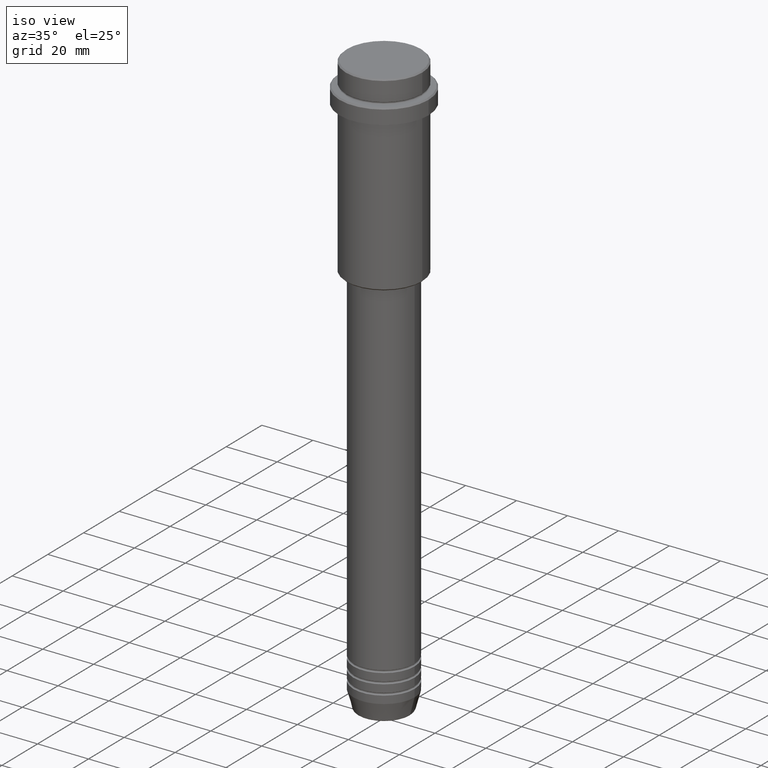
[diagram: clean part render]
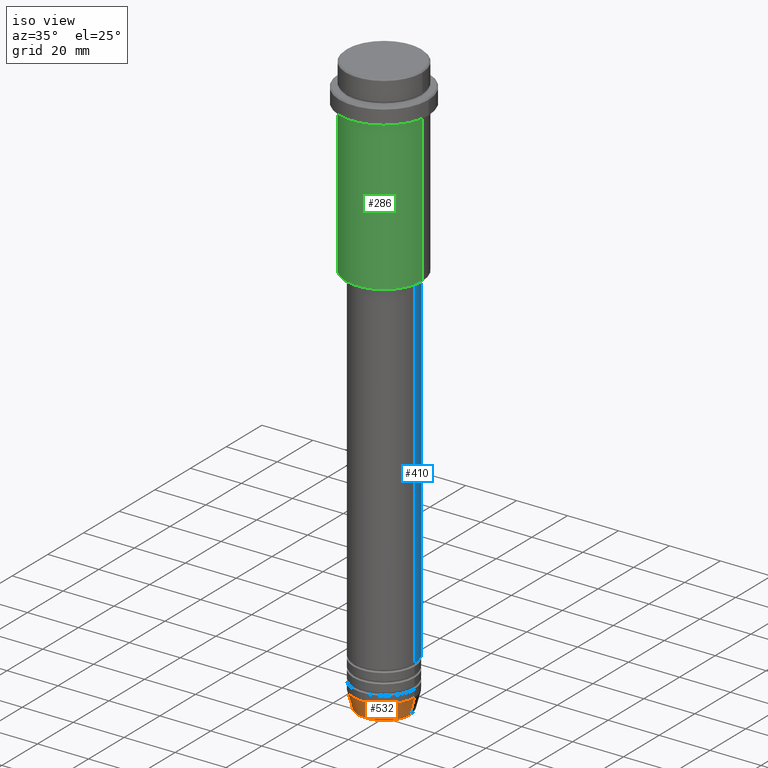
[diagram: same view with three faces highlighted in distinct colors, each labeled with its STEP entity id]
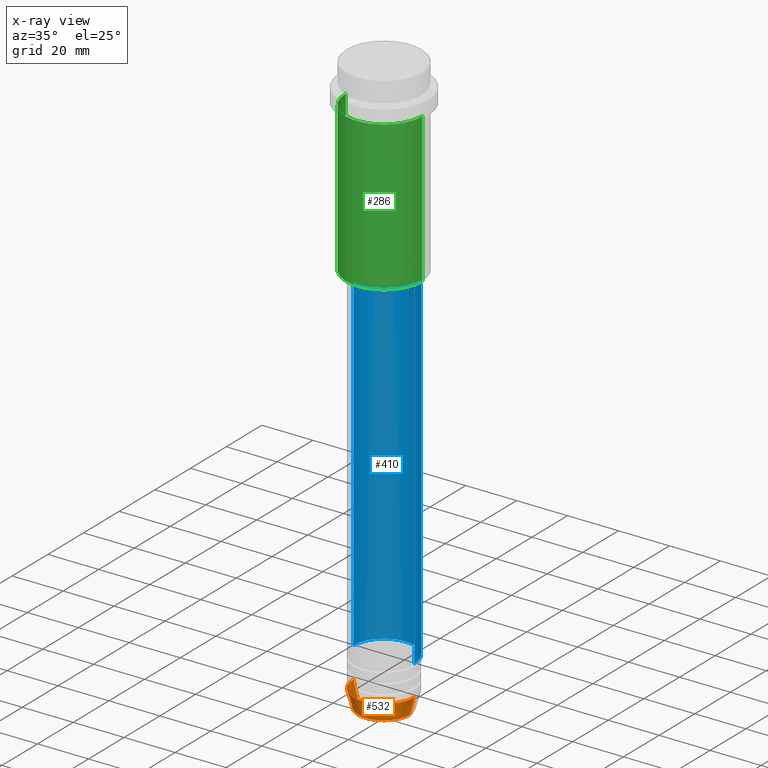
[diagram: x-ray of the same camera — body ghosted, the three highlighted faces saturated]
A machine part, iso view with three faces highlighted in distinct colors.
The next image is the same camera in x-ray (body ghosted, the three faces saturated) — at least one of them is partly hidden behind the body in this view.
Their STEP definitions:

[orange] entity #532 — the highlighted conical surface has half-angle 15 deg.
#24 = ORIENTED_EDGE ( 'NONE', *, *, #436, .T. ) ;
#42 = AXIS2_PLACEMENT_3D ( 'NONE', #480, #717, #287 ) ;
#46 = DIRECTION ( 'NONE',  ( 1.000000000000000000, 0.000000000000000000, 0.000000000000000000 ) ) ;
#47 = VERTEX_POINT ( 'NONE', #297 ) ;
#73 = VERTEX_POINT ( 'NONE', #1059 ) ;
#76 = CARTESIAN_POINT ( 'NONE',  ( -12.00000000000000000, 1.469576158976823947E-15, -222.9999999999999716 ) ) ;
#90 = CARTESIAN_POINT ( 'NONE',  ( 0.000000000000000000, 0.000000000000000000, -222.9999999999999716 ) ) ;
#214 = VERTEX_POINT ( 'NONE', #1116 ) ;
#227 = CONICAL_SURFACE ( 'NONE', #1391, 12.00000000000000000, 0.2617993877991500740 ) ;
#277 = CARTESIAN_POINT ( 'NONE',  ( 0.000000000000000000, 0.000000000000000000, -229.6294095225512422 ) ) ;
#287 = DIRECTION ( 'NONE',  ( 1.000000000000000000, 0.000000000000000000, 0.000000000000000000 ) ) ;
#288 = ORIENTED_EDGE ( 'NONE', *, *, #928, .F. ) ;
#297 = CARTESIAN_POINT ( 'NONE',  ( 12.00000000000000000, 0.000000000000000000, -222.9999999999999716 ) ) ;
#311 = ORIENTED_EDGE ( 'NONE', *, *, #455, .T. ) ;
#379 = LINE ( 'NONE', #911, #746 ) ;
#436 = EDGE_CURVE ( 'NONE', #214, #47, #379, .T. ) ;
#455 = EDGE_CURVE ( 'NONE', #73, #214, #1149, .T. ) ;
#463 = ORIENTED_EDGE ( 'NONE', *, *, #479, .F. ) ;
#479 = EDGE_CURVE ( 'NONE', #1306, #47, #1014, .T. ) ;
#480 = CARTESIAN_POINT ( 'NONE',  ( 0.000000000000000000, 0.000000000000000000, -222.9999999999999716 ) ) ;
#532 = ADVANCED_FACE ( 'NONE', ( #1068 ), #227, .T. ) ;
#536 = AXIS2_PLACEMENT_3D ( 'NONE', #277, #724, #46 ) ;
#578 = VECTOR ( 'NONE', #1044, 1000.000000000000000 ) ;
#590 = CARTESIAN_POINT ( 'NONE',  ( -12.00000000000000000, 1.469576158976823947E-15, -222.9999999999999716 ) ) ;
#717 = DIRECTION ( 'NONE',  ( -0.000000000000000000, -0.000000000000000000, 1.000000000000000000 ) ) ;
#724 = DIRECTION ( 'NONE',  ( -0.000000000000000000, -0.000000000000000000, 1.000000000000000000 ) ) ;
#732 = DIRECTION ( 'NONE',  ( -0.000000000000000000, -0.000000000000000000, 1.000000000000000000 ) ) ;
#746 = VECTOR ( 'NONE', #1358, 1000.000000000000000 ) ;
#816 = LINE ( 'NONE', #76, #578 ) ;
#911 = CARTESIAN_POINT ( 'NONE',  ( 12.00000000000000000, 0.000000000000000000, -222.9999999999999716 ) ) ;
#928 = EDGE_CURVE ( 'NONE', #73, #1306, #816, .T. ) ;
#1014 = CIRCLE ( 'NONE', #42, 12.00000000000000000 ) ;
#1044 = DIRECTION ( 'NONE',  ( -0.2588190451025213501, 3.169619151431772337E-17, 0.9659258262890680902 ) ) ;
#1059 = CARTESIAN_POINT ( 'NONE',  ( -10.22365507213719127, 1.360806402472382744E-15, -229.6294095225512422 ) ) ;
#1068 = FACE_OUTER_BOUND ( 'NONE', #1244, .T. ) ;
#1116 = CARTESIAN_POINT ( 'NONE',  ( 10.22365507213719127, 0.000000000000000000, -229.6294095225512422 ) ) ;
#1149 = CIRCLE ( 'NONE', #536, 10.22365507213719127 ) ;
#1244 = EDGE_LOOP ( 'NONE', ( #288, #311, #24, #463 ) ) ;
#1306 = VERTEX_POINT ( 'NONE', #590 ) ;
#1358 = DIRECTION ( 'NONE',  ( 0.2588190451025213501, 0.000000000000000000, 0.9659258262890680902 ) ) ;
#1391 = AXIS2_PLACEMENT_3D ( 'NONE', #90, #732, #1402 ) ;
#1402 = DIRECTION ( 'NONE',  ( 1.000000000000000000, 0.000000000000000000, 0.000000000000000000 ) ) ;

[blue] entity #410 — the highlighted cylindrical surface (partial cylindrical patch) has radius 12 mm, axis along (-0, -0, 1).
#88 = DIRECTION ( 'NONE',  ( 1.000000000000000000, 0.000000000000000000, 0.000000000000000000 ) ) ;
#100 = EDGE_CURVE ( 'NONE', #1126, #587, #131, .T. ) ;
#131 = CIRCLE ( 'NONE', #250, 12.00000000000000000 ) ;
#155 = VECTOR ( 'NONE', #255, 1000.000000000000000 ) ;
#209 = DIRECTION ( 'NONE',  ( -0.000000000000000000, -0.000000000000000000, 1.000000000000000000 ) ) ;
#225 = DIRECTION ( 'NONE',  ( 1.000000000000000000, 0.000000000000000000, 0.000000000000000000 ) ) ;
#232 = EDGE_LOOP ( 'NONE', ( #1035, #481, #625, #1107 ) ) ;
#238 = EDGE_CURVE ( 'NONE', #587, #1111, #975, .T. ) ;
#250 = AXIS2_PLACEMENT_3D ( 'NONE', #1293, #1065, #88 ) ;
#255 = DIRECTION ( 'NONE',  ( -0.000000000000000000, -0.000000000000000000, 1.000000000000000000 ) ) ;
#260 = CARTESIAN_POINT ( 'NONE',  ( -12.00000000000000000, 1.469576158976823947E-15, 0.000000000000000000 ) ) ;
#293 = AXIS2_PLACEMENT_3D ( 'NONE', #600, #502, #1148 ) ;
#321 = CARTESIAN_POINT ( 'NONE',  ( 12.00000000000000000, 0.000000000000000000, 0.000000000000000000 ) ) ;
#333 = CARTESIAN_POINT ( 'NONE',  ( 12.00000000000000000, 0.000000000000000000, -210.9999999999998579 ) ) ;
#338 = CIRCLE ( 'NONE', #1320, 11.99999999999999822 ) ;
#397 = FACE_OUTER_BOUND ( 'NONE', #232, .T. ) ;
#404 = VECTOR ( 'NONE', #209, 1000.000000000000000 ) ;
#410 = ADVANCED_FACE ( 'NONE', ( #397 ), #919, .T. ) ;
#442 = CARTESIAN_POINT ( 'NONE',  ( 0.000000000000000000, 0.000000000000000000, -75.99999999999998579 ) ) ;
#481 = ORIENTED_EDGE ( 'NONE', *, *, #238, .T. ) ;
#502 = DIRECTION ( 'NONE',  ( -0.000000000000000000, -0.000000000000000000, 1.000000000000000000 ) ) ;
#587 = VERTEX_POINT ( 'NONE', #1045 ) ;
#600 = CARTESIAN_POINT ( 'NONE',  ( 0.000000000000000000, 0.000000000000000000, 0.000000000000000000 ) ) ;
#610 = VERTEX_POINT ( 'NONE', #739 ) ;
#625 = ORIENTED_EDGE ( 'NONE', *, *, #709, .F. ) ;
#709 = EDGE_CURVE ( 'NONE', #610, #1111, #338, .T. ) ;
#739 = CARTESIAN_POINT ( 'NONE',  ( 11.99999999999999822, 0.000000000000000000, -75.99999999999998579 ) ) ;
#874 = CARTESIAN_POINT ( 'NONE',  ( -11.99999999999999822, 1.469576158976823750E-15, -75.99999999999998579 ) ) ;
#919 = CYLINDRICAL_SURFACE ( 'NONE', #293, 12.00000000000000000 ) ;
#975 = LINE ( 'NONE', #260, #155 ) ;
#1035 = ORIENTED_EDGE ( 'NONE', *, *, #100, .T. ) ;
#1042 = EDGE_CURVE ( 'NONE', #1126, #610, #1387, .T. ) ;
#1045 = CARTESIAN_POINT ( 'NONE',  ( -12.00000000000000000, 1.469576158976823947E-15, -210.9999999999998579 ) ) ;
#1065 = DIRECTION ( 'NONE',  ( -0.000000000000000000, -0.000000000000000000, 1.000000000000000000 ) ) ;
#1107 = ORIENTED_EDGE ( 'NONE', *, *, #1042, .F. ) ;
#1111 = VERTEX_POINT ( 'NONE', #874 ) ;
#1126 = VERTEX_POINT ( 'NONE', #333 ) ;
#1148 = DIRECTION ( 'NONE',  ( 1.000000000000000000, 0.000000000000000000, 0.000000000000000000 ) ) ;
#1293 = CARTESIAN_POINT ( 'NONE',  ( 0.000000000000000000, 0.000000000000000000, -210.9999999999998579 ) ) ;
#1320 = AXIS2_PLACEMENT_3D ( 'NONE', #442, #1322, #225 ) ;
#1322 = DIRECTION ( 'NONE',  ( -0.000000000000000000, -0.000000000000000000, 1.000000000000000000 ) ) ;
#1387 = LINE ( 'NONE', #321, #404 ) ;

[green] entity #286 — the highlighted cylindrical surface (partial cylindrical patch) has radius 15 mm, axis along (-0, -0, 1).
#3 = EDGE_CURVE ( 'NONE', #1380, #29, #60, .T. ) ;
#29 = VERTEX_POINT ( 'NONE', #399 ) ;
#53 = ORIENTED_EDGE ( 'NONE', *, *, #127, .F. ) ;
#60 = LINE ( 'NONE', #1041, #1290 ) ;
#99 = LINE ( 'NONE', #838, #938 ) ;
#117 = EDGE_CURVE ( 'NONE', #1260, #1383, #99, .T. ) ;
#127 = EDGE_CURVE ( 'NONE', #1383, #29, #1011, .T. ) ;
#128 = DIRECTION ( 'NONE',  ( -0.000000000000000000, -0.000000000000000000, 1.000000000000000000 ) ) ;
#187 = EDGE_LOOP ( 'NONE', ( #1106, #591, #1210, #53 ) ) ;
#286 = ADVANCED_FACE ( 'NONE', ( #1345 ), #1092, .T. ) ;
#291 = AXIS2_PLACEMENT_3D ( 'NONE', #825, #1067, #316 ) ;
#301 = DIRECTION ( 'NONE',  ( -0.000000000000000000, -0.000000000000000000, 1.000000000000000000 ) ) ;
#316 = DIRECTION ( 'NONE',  ( -1.000000000000000000, 0.000000000000000000, 0.000000000000000000 ) ) ;
#399 = CARTESIAN_POINT ( 'NONE',  ( 15.00000000000000178, 0.000000000000000000, -16.00000000000000000 ) ) ;
#414 = DIRECTION ( 'NONE',  ( -0.000000000000000000, -0.000000000000000000, 1.000000000000000000 ) ) ;
#473 = CARTESIAN_POINT ( 'NONE',  ( 0.000000000000000000, 0.000000000000000000, 0.000000000000000000 ) ) ;
#560 = DIRECTION ( 'NONE',  ( 1.000000000000000000, 0.000000000000000000, 0.000000000000000000 ) ) ;
#591 = ORIENTED_EDGE ( 'NONE', *, *, #963, .T. ) ;
#638 = CARTESIAN_POINT ( 'NONE',  ( -15.00000000000000355, 1.836970198721029983E-15, -16.00000000000000000 ) ) ;
#721 = DIRECTION ( 'NONE',  ( -0.000000000000000000, -0.000000000000000000, 1.000000000000000000 ) ) ;
#743 = CARTESIAN_POINT ( 'NONE',  ( 15.00000000000000000, 0.000000000000000000, -74.49999999999994316 ) ) ;
#825 = CARTESIAN_POINT ( 'NONE',  ( 0.000000000000000000, 0.000000000000000000, -74.49999999999994316 ) ) ;
#838 = CARTESIAN_POINT ( 'NONE',  ( -15.00000000000000000, 1.836970198721029589E-15, 0.000000000000000000 ) ) ;
#894 = CIRCLE ( 'NONE', #291, 15.00000000000000000 ) ;
#938 = VECTOR ( 'NONE', #301, 1000.000000000000000 ) ;
#946 = DIRECTION ( 'NONE',  ( 1.000000000000000000, 0.000000000000000000, 0.000000000000000000 ) ) ;
#963 = EDGE_CURVE ( 'NONE', #1260, #1380, #894, .T. ) ;
#1011 = CIRCLE ( 'NONE', #1032, 15.00000000000000178 ) ;
#1023 = CARTESIAN_POINT ( 'NONE',  ( -15.00000000000000000, 1.836970198721029589E-15, -74.49999999999994316 ) ) ;
#1032 = AXIS2_PLACEMENT_3D ( 'NONE', #1162, #414, #946 ) ;
#1041 = CARTESIAN_POINT ( 'NONE',  ( 15.00000000000000000, 0.000000000000000000, 0.000000000000000000 ) ) ;
#1067 = DIRECTION ( 'NONE',  ( -0.000000000000000000, -0.000000000000000000, 1.000000000000000000 ) ) ;
#1092 = CYLINDRICAL_SURFACE ( 'NONE', #1147, 15.00000000000000000 ) ;
#1106 = ORIENTED_EDGE ( 'NONE', *, *, #117, .F. ) ;
#1147 = AXIS2_PLACEMENT_3D ( 'NONE', #473, #128, #560 ) ;
#1162 = CARTESIAN_POINT ( 'NONE',  ( 0.000000000000000000, 0.000000000000000000, -16.00000000000000000 ) ) ;
#1210 = ORIENTED_EDGE ( 'NONE', *, *, #3, .T. ) ;
#1260 = VERTEX_POINT ( 'NONE', #1023 ) ;
#1290 = VECTOR ( 'NONE', #721, 1000.000000000000000 ) ;
#1345 = FACE_OUTER_BOUND ( 'NONE', #187, .T. ) ;
#1380 = VERTEX_POINT ( 'NONE', #743 ) ;
#1383 = VERTEX_POINT ( 'NONE', #638 ) ;